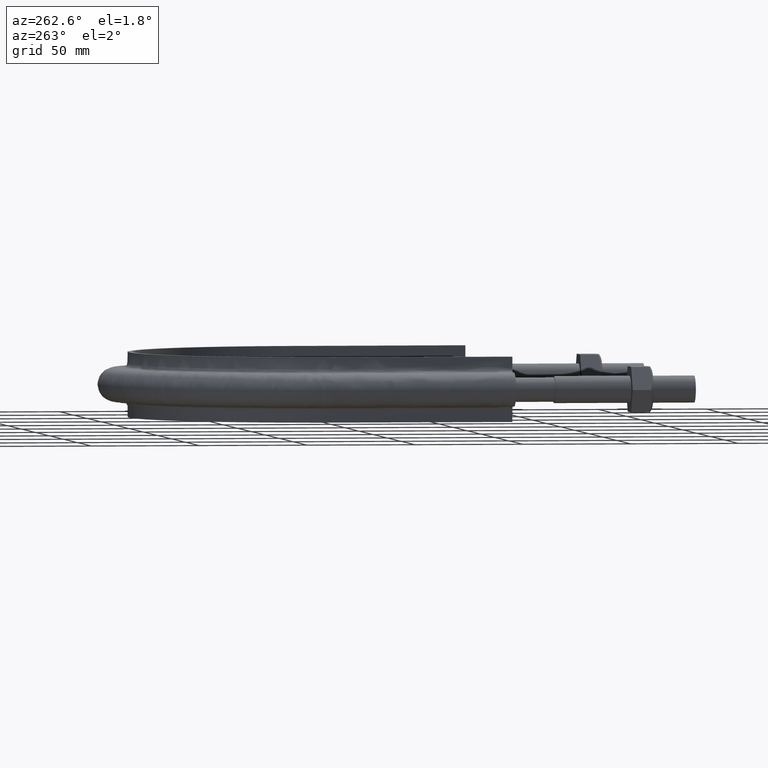
[diagram: clean part render]
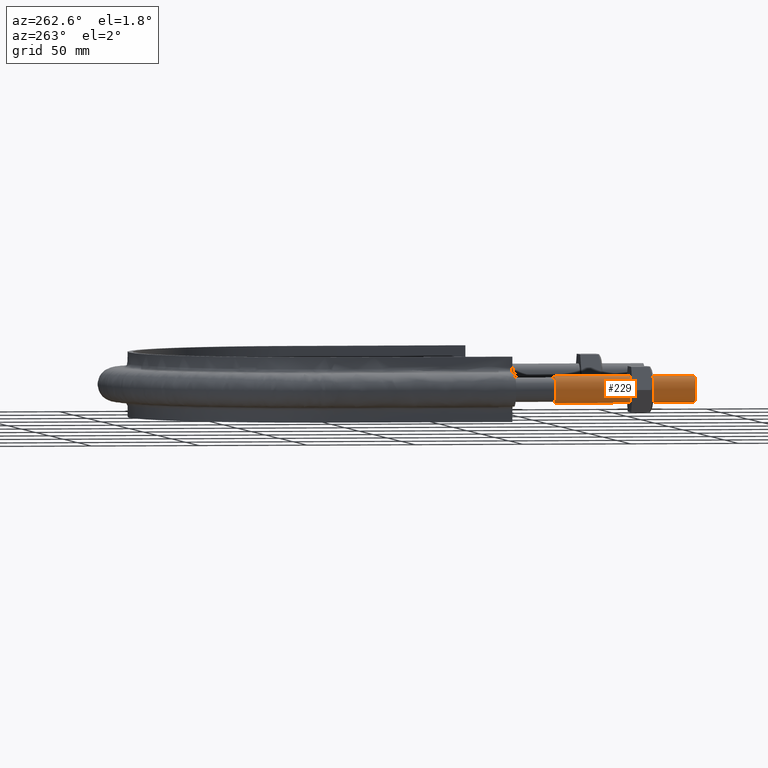
[diagram: same view with one face highlighted and labeled with its STEP entity id]
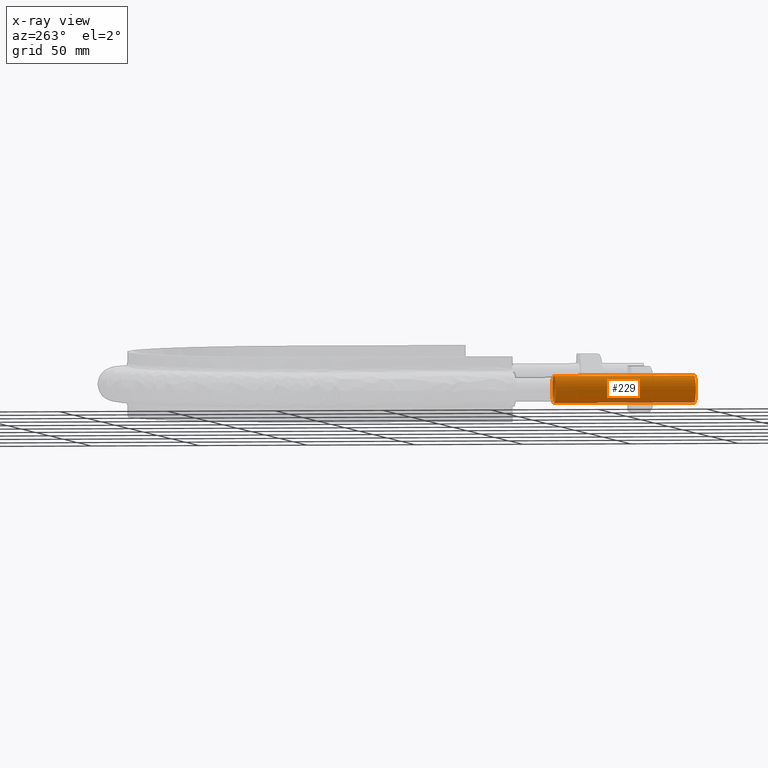
[diagram: x-ray of the same camera — body ghosted, the highlighted face saturated]
A machine part, auxiliary view. The second image highlights one B-rep face of the part: STEP entity #229.
The next image is the same camera in x-ray: the body ghosted, the highlighted face saturated — about 0% of this face is hidden behind the body in this view.
In plain terms, the highlighted cylindrical surface (bore or boss wall) has radius 6.25 mm, axis along (0, 1, -0).
Its self-contained STEP definition (entity closure, byte-faithful):
#229 = ADVANCED_FACE( '', ( #285, #286 ), #287, .T. );
#285 = FACE_OUTER_BOUND( '', #1286, .T. );
#286 = FACE_OUTER_BOUND( '', #1287, .T. );
#287 = CYLINDRICAL_SURFACE( '', #1288, 6.25000000000001 );
#1286 = EDGE_LOOP( '', ( #1453 ) );
#1287 = EDGE_LOOP( '', ( #1454 ) );
#1288 = AXIS2_PLACEMENT_3D( '', #1455, #1456, #1457 );
#1453 = ORIENTED_EDGE( '', *, *, #1685, .T. );
#1454 = ORIENTED_EDGE( '', *, *, #1684, .F. );
#1455 = CARTESIAN_POINT( '', ( -91.0000000000000, 65.0000000000000, -1.98998532496136E-014 ) );
#1456 = DIRECTION( '', ( 2.44921270764476E-016, 1.00000000000000, -3.06151588455594E-016 ) );
#1457 = DIRECTION( '', ( 1.00000000000000, -2.44921270764475E-016, 0.000000000000000 ) );
#1684 = EDGE_CURVE( '', #1793, #1793, #1794, .T. );
#1685 = EDGE_CURVE( '', #1795, #1795, #1796, .T. );
#1793 = VERTEX_POINT( '', #2139 );
#1794 = CIRCLE( '', #2140, 6.25000000000001 );
#1795 = VERTEX_POINT( '', #2141 );
#1796 = CIRCLE( '', #2142, 6.25000000000001 );
#2139 = CARTESIAN_POINT( '', ( -84.7500000000000, 9.61315987750566E-015, 0.000000000000000 ) );
#2140 = AXIS2_PLACEMENT_3D( '', #2394, #2395, #2396 );
#2141 = CARTESIAN_POINT( '', ( -84.7500000000000, 65.0000000000000, -1.98998532496136E-014 ) );
#2142 = AXIS2_PLACEMENT_3D( '', #2397, #2398, #2399 );
#2394 = CARTESIAN_POINT( '', ( -91.0000000000000, 1.11439178197836E-014, 0.000000000000000 ) );
#2395 = DIRECTION( '', ( -2.44921270764476E-016, -1.00000000000000, 3.06151588455594E-016 ) );
#2396 = DIRECTION( '', ( 1.00000000000000, -2.44921270764475E-016, 0.000000000000000 ) );
#2397 = CARTESIAN_POINT( '', ( -91.0000000000000, 65.0000000000000, -1.98998532496136E-014 ) );
#2398 = DIRECTION( '', ( -2.44921270764476E-016, -1.00000000000000, 3.06151588455594E-016 ) );
#2399 = DIRECTION( '', ( 1.00000000000000, -2.44921270764475E-016, 0.000000000000000 ) );